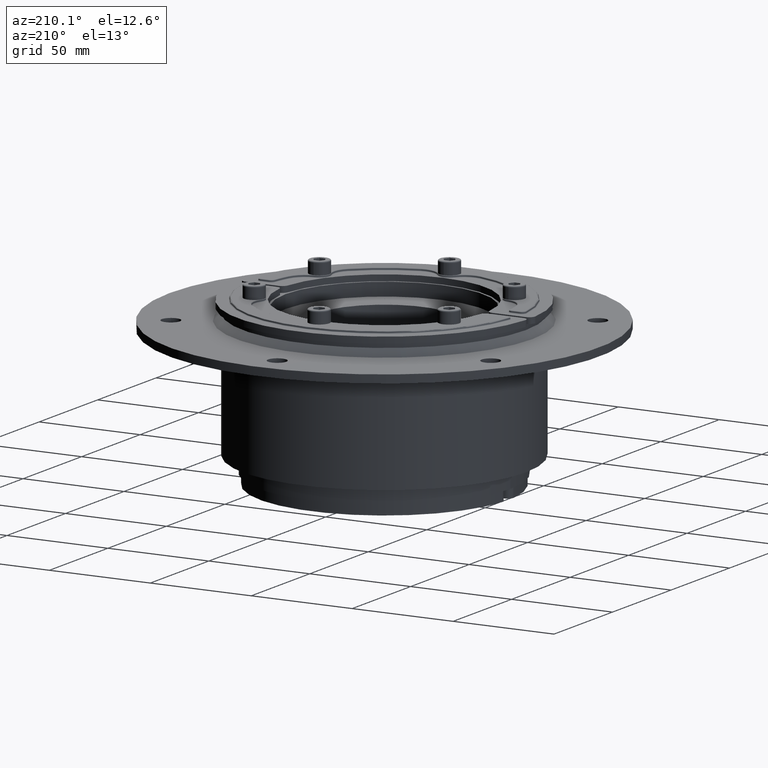
[diagram: clean part render]
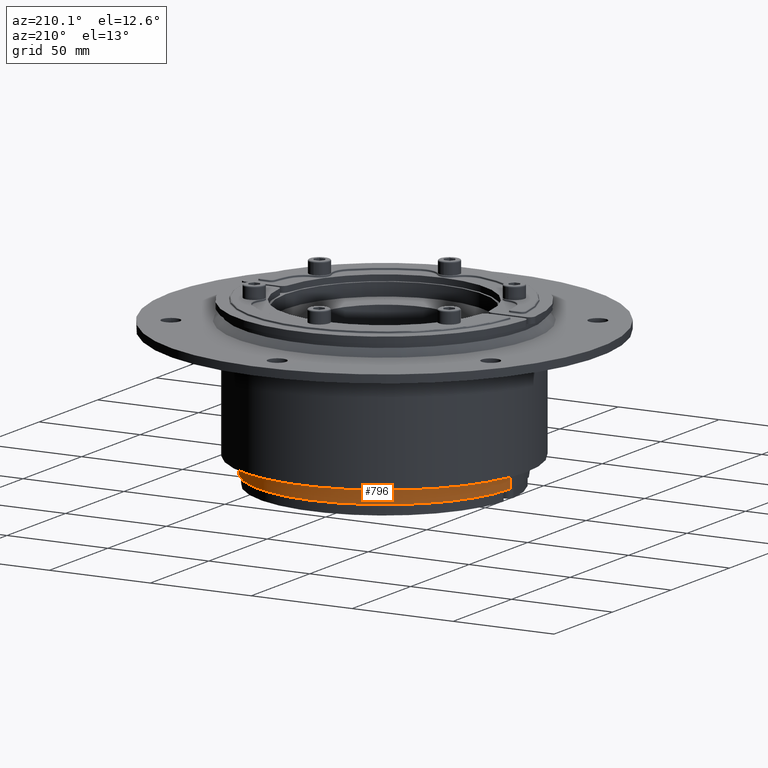
[diagram: same view with one face highlighted and labeled with its STEP entity id]
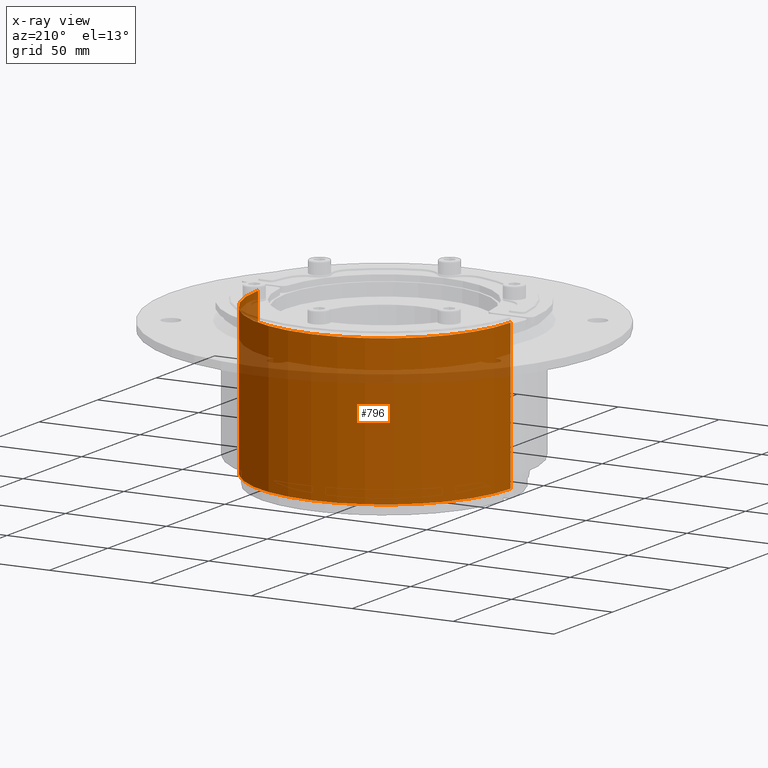
[diagram: x-ray of the same camera — body ghosted, the highlighted face saturated]
A machine part, auxiliary view. The second image highlights one B-rep face of the part: STEP entity #796.
The next image is the same camera in x-ray: the body ghosted, the highlighted face saturated — about 10% of this face is hidden behind the body in this view.
In plain terms, the highlighted cylindrical surface (partial cylindrical patch) has radius 62.5 mm, axis along (-0, -0, 1).
Its self-contained STEP definition (entity closure, byte-faithful):
#731=CARTESIAN_POINT('',(126.14951650997671,64.233709507012236,0.0));
#732=VERTEX_POINT('',#731);
#747=CARTESIAN_POINT('',(126.14951650997671,64.233709507012236,73.0));
#748=VERTEX_POINT('',#747);
#755=CARTESIAN_POINT('',(126.14951650997671,64.233709507012236,0.0));
#756=DIRECTION('',(0.0,0.0,1.0));
#757=VECTOR('',#756,73.0);
#758=LINE('',#755,#757);
#759=EDGE_CURVE('',#732,#748,#758,.T.);
#764=CARTESIAN_POINT('',(63.649516509976714,64.233709507012236,0.0));
#765=DIRECTION('',(0.0,0.0,1.0));
#766=DIRECTION('',(1.0,0.0,0.0));
#767=AXIS2_PLACEMENT_3D('',#764,#765,#766);
#768=CYLINDRICAL_SURFACE('',#767,62.5);
#769=CARTESIAN_POINT('',(1.149516509976706,64.23370950701225,0.0));
#770=VERTEX_POINT('',#769);
#771=CARTESIAN_POINT('',(63.649516509976714,64.233709507012236,0.0));
#772=DIRECTION('',(0.0,0.0,-1.0));
#773=DIRECTION('',(1.0,0.0,0.0));
#774=AXIS2_PLACEMENT_3D('',#771,#772,#773);
#775=CIRCLE('',#774,62.5);
#776=EDGE_CURVE('',#732,#770,#775,.T.);
#777=ORIENTED_EDGE('',*,*,#776,.F.);
#778=ORIENTED_EDGE('',*,*,#759,.T.);
#779=CARTESIAN_POINT('',(1.149516509976707,64.23370950701225,73.0));
#780=VERTEX_POINT('',#779);
#781=CARTESIAN_POINT('',(63.649516509976714,64.233709507012236,73.0));
#782=DIRECTION('',(0.0,0.0,1.0));
#783=DIRECTION('',(1.0,0.0,0.0));
#784=AXIS2_PLACEMENT_3D('',#781,#782,#783);
#785=CIRCLE('',#784,62.5);
#786=EDGE_CURVE('',#780,#748,#785,.T.);
#787=ORIENTED_EDGE('',*,*,#786,.F.);
#788=CARTESIAN_POINT('',(1.149516509976706,64.23370950701225,0.0));
#789=DIRECTION('',(0.0,0.0,1.0));
#790=VECTOR('',#789,73.0);
#791=LINE('',#788,#790);
#792=EDGE_CURVE('',#770,#780,#791,.T.);
#793=ORIENTED_EDGE('',*,*,#792,.F.);
#794=EDGE_LOOP('',(#777,#778,#787,#793));
#795=FACE_OUTER_BOUND('',#794,.T.);
#796=ADVANCED_FACE('',(#795),#768,.T.);